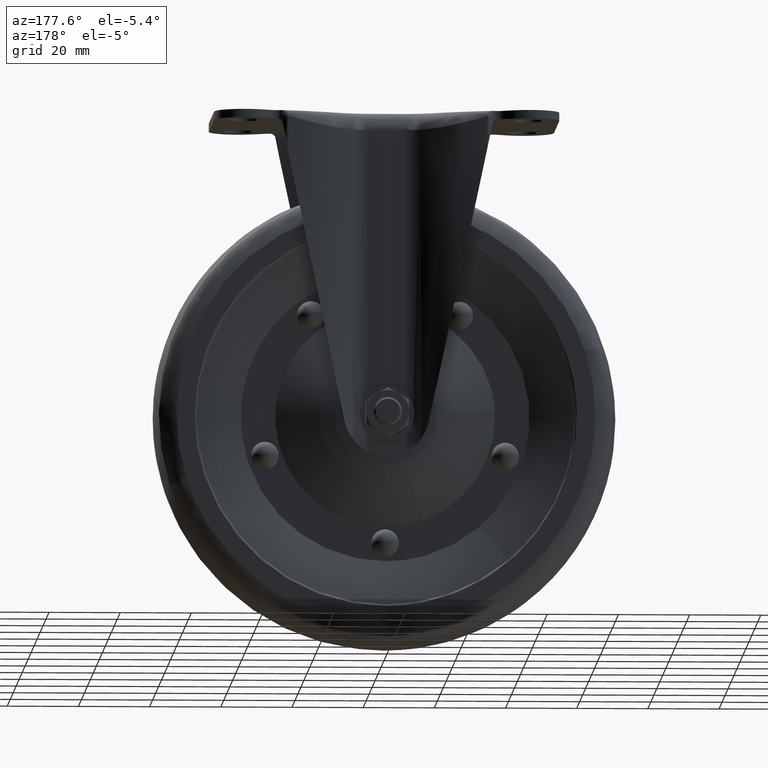
[diagram: clean part render]
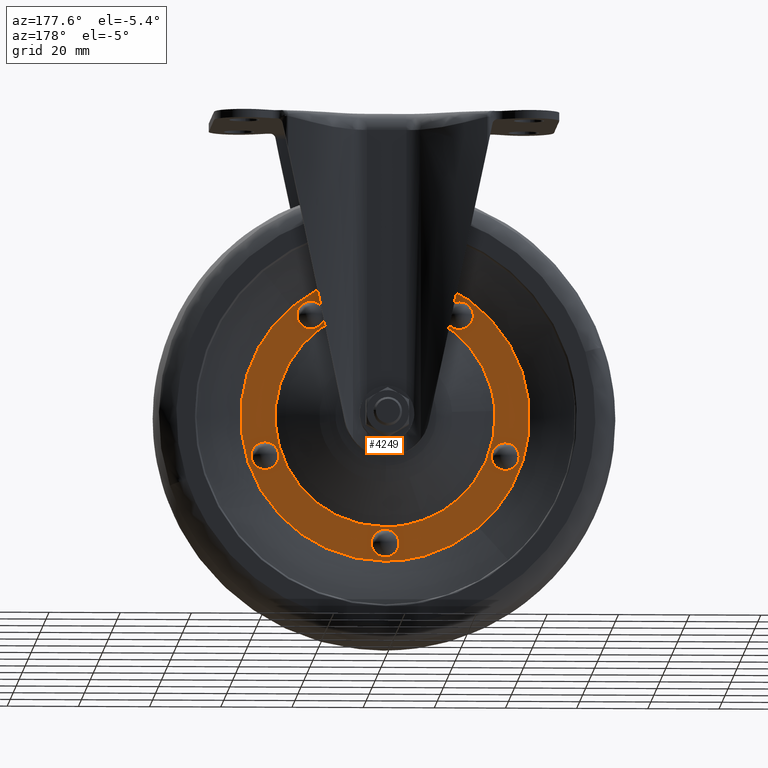
[diagram: same view with one face highlighted and labeled with its STEP entity id]
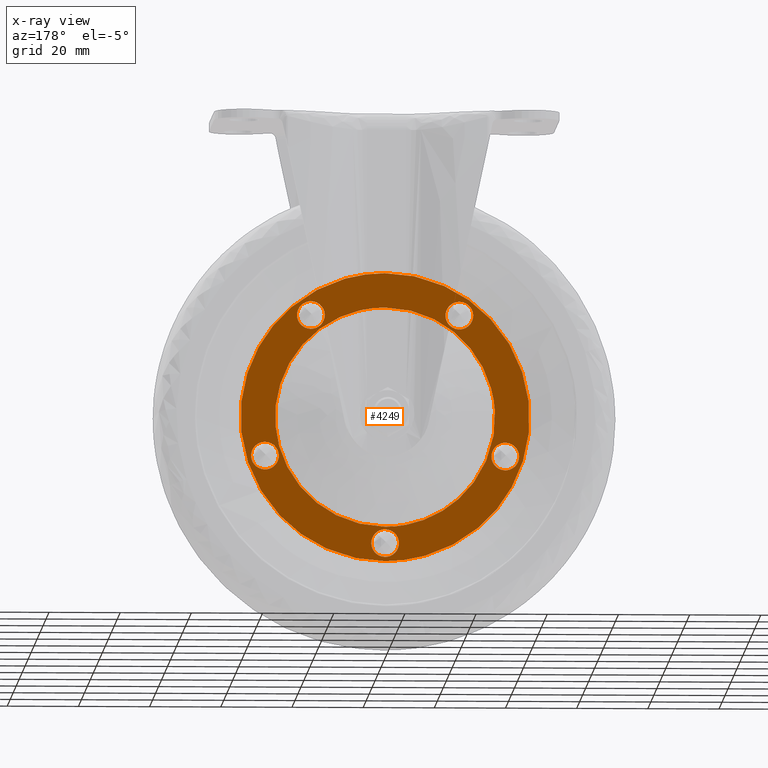
[diagram: x-ray of the same camera — body ghosted, the highlighted face saturated]
A machine part, auxiliary view. The second image highlights one B-rep face of the part: STEP entity #4249.
The next image is the same camera in x-ray: the body ghosted, the highlighted face saturated — about 0% of this face is hidden behind the body in this view.
In plain terms, the highlighted face is a freeform B-spline surface patch.
Its self-contained STEP definition (entity closure, byte-faithful):
#893=CARTESIAN_POINT('',(-30.842365271273451,7.499999999976097,-83.113600127951770));
#894=VERTEX_POINT('',#893);
#900=CARTESIAN_POINT('',(0.0,7.500000000000000,-54.100000000000009));
#901=VERTEX_POINT('',#900);
#902=CARTESIAN_POINT('',(0.0,7.500000000000000,-54.100000000000009));
#903=CARTESIAN_POINT('',(-29.067817466598008,7.500000000000001,-54.100000000000009));
#904=CARTESIAN_POINT('',(-30.842365271273451,7.499999999976097,-83.113600127951770));
#912=(BOUNDED_CURVE()B_SPLINE_CURVE(2,(#902,#903,#904),.UNSPECIFIED.,.F.,.U.)B_SPLINE_CURVE_WITH_KNOTS((3,3),(0.500000000000000,0.739332962237300),.UNSPECIFIED.)CURVE()GEOMETRIC_REPRESENTATION_ITEM()RATIONAL_B_SPLINE_CURVE((1.0,0.719603993288635,0.976072041663196))REPRESENTATION_ITEM(''));
#913=EDGE_CURVE('',#901,#894,#912,.T.);
#915=CARTESIAN_POINT('',(0.0,7.500000000000000,-115.900000000000010));
#916=VERTEX_POINT('',#915);
#917=CARTESIAN_POINT('',(0.0,7.500000000000000,-115.900000000000010));
#918=CARTESIAN_POINT('',(30.900000000000002,7.500000000000000,-115.900000000000010));
#919=CARTESIAN_POINT('',(30.899999999999999,7.500000000000000,-85.0));
#920=CARTESIAN_POINT('',(30.900000000000002,7.500000000000000,-54.100000000000009));
#921=CARTESIAN_POINT('',(0.0,7.500000000000000,-54.100000000000009));
#929=(BOUNDED_CURVE()B_SPLINE_CURVE(2,(#917,#918,#919,#920,#921),.UNSPECIFIED.,.F.,.U.)B_SPLINE_CURVE_WITH_KNOTS((3,2,3),(0.0,0.250000000000000,0.500000000000000),.UNSPECIFIED.)CURVE()GEOMETRIC_REPRESENTATION_ITEM()RATIONAL_B_SPLINE_CURVE((1.0,0.707106781186548,1.0,0.707106781186548,1.0))REPRESENTATION_ITEM(''));
#930=EDGE_CURVE('',#916,#901,#929,.T.);
#932=CARTESIAN_POINT('',(-10.864995408822020,7.499999999995296,-113.926836584166000));
#933=VERTEX_POINT('',#932);
#934=CARTESIAN_POINT('',(-10.864995408822022,7.499999999995296,-113.926836584166070));
#935=CARTESIAN_POINT('',(-5.611668229593174,7.500000000000000,-115.900000000000010));
#936=CARTESIAN_POINT('',(0.0,7.500000000000000,-115.900000000000010));
#944=(BOUNDED_CURVE()B_SPLINE_CURVE(2,(#934,#935,#936),.UNSPECIFIED.,.F.,.U.)B_SPLINE_CURVE_WITH_KNOTS((3,3),(0.940284170897620,1.0),.UNSPECIFIED.)CURVE()GEOMETRIC_REPRESENTATION_ITEM()RATIONAL_B_SPLINE_CURVE((0.893499554634188,0.930038554400360,1.0))REPRESENTATION_ITEM(''));
#945=EDGE_CURVE('',#933,#916,#944,.T.);
#985=CARTESIAN_POINT('',(-30.842365271273451,7.499999999976097,-83.113600127951770));
#986=CARTESIAN_POINT('',(-30.900000000000002,7.500000000000001,-84.055919613655149));
#987=CARTESIAN_POINT('',(-30.899999999999999,7.500000000000000,-85.0));
#988=CARTESIAN_POINT('',(-30.900000000000002,7.499999999999999,-106.401636506770900));
#989=CARTESIAN_POINT('',(-10.864995408822022,7.499999999995296,-113.926836584166010));
#997=(BOUNDED_CURVE()B_SPLINE_CURVE(2,(#985,#986,#987,#988,#989),.UNSPECIFIED.,.F.,.U.)B_SPLINE_CURVE_WITH_KNOTS((3,2,3),(0.739332962237299,0.750000000000000,0.940284170897620),.UNSPECIFIED.)CURVE()GEOMETRIC_REPRESENTATION_ITEM()RATIONAL_B_SPLINE_CURVE((0.976072041663195,0.987502787897912,1.0,0.777068226786188,0.893499554634188))REPRESENTATION_ITEM(''));
#998=EDGE_CURVE('',#894,#933,#997,.T.);
#1738=CARTESIAN_POINT('',(-26.270472039869020,7.500000000075627,-115.955165947128190));
#1739=VERTEX_POINT('',#1738);
#1753=CARTESIAN_POINT('',(0.0,7.500000000000000,-125.599999999999990));
#1754=VERTEX_POINT('',#1753);
#1755=CARTESIAN_POINT('',(-26.270472039869020,7.500000000075627,-115.955165947128190));
#1756=CARTESIAN_POINT('',(-14.905718555772401,7.500000000000001,-125.599999999999920));
#1757=CARTESIAN_POINT('',(0.0,7.500000000000000,-125.599999999999990));
#1765=(BOUNDED_CURVE()B_SPLINE_CURVE(2,(#1755,#1756,#1757),.UNSPECIFIED.,.F.,.U.)B_SPLINE_CURVE_WITH_KNOTS((3,3),(0.887331629833253,1.0),.UNSPECIFIED.)CURVE()GEOMETRIC_REPRESENTATION_ITEM()RATIONAL_B_SPLINE_CURVE((0.854978670802060,0.868000793613584,1.0))REPRESENTATION_ITEM(''));
#1766=EDGE_CURVE('',#1739,#1754,#1765,.T.);
#1768=CARTESIAN_POINT('',(26.270472039869020,7.500000000075630,-54.044834052871792));
#1769=VERTEX_POINT('',#1768);
#1770=CARTESIAN_POINT('',(0.0,7.500000000000000,-125.599999999999990));
#1771=CARTESIAN_POINT('',(40.599999999999994,7.500000000000000,-125.599999999999980));
#1772=CARTESIAN_POINT('',(40.599999999999987,7.500000000000000,-85.0));
#1773=CARTESIAN_POINT('',(40.599999999999994,7.499999999999999,-66.205759446435408));
#1774=CARTESIAN_POINT('',(26.270472039869020,7.500000000075630,-54.044834052871792));
#1782=(BOUNDED_CURVE()B_SPLINE_CURVE(2,(#1770,#1771,#1772,#1773,#1774),.UNSPECIFIED.,.F.,.U.)B_SPLINE_CURVE_WITH_KNOTS((3,2,3),(0.0,0.250000000000000,0.387331629833253),.UNSPECIFIED.)CURVE()GEOMETRIC_REPRESENTATION_ITEM()RATIONAL_B_SPLINE_CURVE((1.0,0.707106781186548,1.0,0.839105987572964,0.854978670802060))REPRESENTATION_ITEM(''));
#1783=EDGE_CURVE('',#1754,#1769,#1782,.T.);
#1902=CARTESIAN_POINT('',(0.0,7.500000000000000,-44.400000000000013));
#1903=VERTEX_POINT('',#1902);
#1904=CARTESIAN_POINT('',(26.270472039869020,7.500000000075630,-54.044834052871792));
#1905=CARTESIAN_POINT('',(14.905718555772401,7.500000000000001,-44.399999999999999));
#1906=CARTESIAN_POINT('',(0.0,7.500000000000000,-44.400000000000013));
#1914=(BOUNDED_CURVE()B_SPLINE_CURVE(2,(#1904,#1905,#1906),.UNSPECIFIED.,.F.,.U.)B_SPLINE_CURVE_WITH_KNOTS((3,3),(0.387331629833253,0.500000000000000),.UNSPECIFIED.)CURVE()GEOMETRIC_REPRESENTATION_ITEM()RATIONAL_B_SPLINE_CURVE((0.854978670802060,0.868000793613584,1.0))REPRESENTATION_ITEM(''));
#1915=EDGE_CURVE('',#1769,#1903,#1914,.T.);
#1917=CARTESIAN_POINT('',(0.0,7.500000000000000,-44.400000000000013));
#1918=CARTESIAN_POINT('',(-40.599999999999994,7.500000000000000,-44.400000000000013));
#1919=CARTESIAN_POINT('',(-40.599999999999987,7.500000000000000,-85.0));
#1920=CARTESIAN_POINT('',(-40.599999999999994,7.500000000000000,-103.794240553564720));
#1921=CARTESIAN_POINT('',(-26.270472039869023,7.500000000075627,-115.955165947128190));
#1929=(BOUNDED_CURVE()B_SPLINE_CURVE(2,(#1917,#1918,#1919,#1920,#1921),.UNSPECIFIED.,.F.,.U.)B_SPLINE_CURVE_WITH_KNOTS((3,2,3),(0.500000000000000,0.750000000000000,0.887331629833254),.UNSPECIFIED.)CURVE()GEOMETRIC_REPRESENTATION_ITEM()RATIONAL_B_SPLINE_CURVE((1.0,0.707106781186548,1.0,0.839105987572963,0.854978670802060))REPRESENTATION_ITEM(''));
#1930=EDGE_CURVE('',#1903,#1739,#1929,.T.);
#3419=CARTESIAN_POINT('',(-33.762506328477947,7.500000000000000,-99.870103300310689));
#3420=VERTEX_POINT('',#3419);
#3421=CARTESIAN_POINT('',(-33.762506328477947,7.500000000000000,-92.070103300310691));
#3422=VERTEX_POINT('',#3421);
#3423=CARTESIAN_POINT('',(-33.762506328477947,7.500000000000000,-99.870103300310689));
#3424=CARTESIAN_POINT('',(-29.862506328477949,7.500000000000000,-99.870103300310660));
#3425=CARTESIAN_POINT('',(-29.862506328477949,7.500000000000000,-95.970103300310697));
#3426=CARTESIAN_POINT('',(-29.862506328477949,7.500000000000000,-92.070103300310691));
#3427=CARTESIAN_POINT('',(-33.762506328477947,7.500000000000000,-92.070103300310691));
#3435=(BOUNDED_CURVE()B_SPLINE_CURVE(2,(#3423,#3424,#3425,#3426,#3427),.UNSPECIFIED.,.F.,.U.)B_SPLINE_CURVE_WITH_KNOTS((3,2,3),(0.500000000000000,0.750000000000000,1.0),.UNSPECIFIED.)CURVE()GEOMETRIC_REPRESENTATION_ITEM()RATIONAL_B_SPLINE_CURVE((1.0,0.707106781186548,1.0,0.707106781186548,1.0))REPRESENTATION_ITEM(''));
#3436=EDGE_CURVE('',#3420,#3422,#3435,.T.);
#3438=CARTESIAN_POINT('',(-33.762506328477947,7.500000000000000,-92.070103300310691));
#3439=CARTESIAN_POINT('',(-37.662506328477946,7.500000000000000,-92.070103300310691));
#3440=CARTESIAN_POINT('',(-37.662506328477953,7.500000000000000,-95.970103300310697));
#3441=CARTESIAN_POINT('',(-37.662506328477946,7.500000000000000,-99.870103300310660));
#3442=CARTESIAN_POINT('',(-33.762506328477947,7.500000000000000,-99.870103300310689));
#3450=(BOUNDED_CURVE()B_SPLINE_CURVE(2,(#3438,#3439,#3440,#3441,#3442),.UNSPECIFIED.,.F.,.U.)B_SPLINE_CURVE_WITH_KNOTS((3,2,3),(0.0,0.250000000000000,0.500000000000000),.UNSPECIFIED.)CURVE()GEOMETRIC_REPRESENTATION_ITEM()RATIONAL_B_SPLINE_CURVE((1.0,0.707106781186548,1.0,0.707106781186548,1.0))REPRESENTATION_ITEM(''));
#3451=EDGE_CURVE('',#3422,#3420,#3450,.T.);
#3581=CARTESIAN_POINT('',(-20.866376456382799,7.500000000000000,-60.179896699689500));
#3582=VERTEX_POINT('',#3581);
#3583=CARTESIAN_POINT('',(-20.866376456382799,7.500000000000000,-52.379896699689503));
#3584=VERTEX_POINT('',#3583);
#3585=CARTESIAN_POINT('',(-20.866376456382799,7.500000000000000,-60.179896699689500));
#3586=CARTESIAN_POINT('',(-16.966376456382807,7.500000000000000,-60.179896699689500));
#3587=CARTESIAN_POINT('',(-16.966376456382800,7.500000000000000,-56.279896699689502));
#3588=CARTESIAN_POINT('',(-16.966376456382807,7.500000000000000,-52.379896699689496));
#3589=CARTESIAN_POINT('',(-20.866376456382799,7.500000000000000,-52.379896699689503));
#3597=(BOUNDED_CURVE()B_SPLINE_CURVE(2,(#3585,#3586,#3587,#3588,#3589),.UNSPECIFIED.,.F.,.U.)B_SPLINE_CURVE_WITH_KNOTS((3,2,3),(0.500000000000000,0.750000000000000,1.0),.UNSPECIFIED.)CURVE()GEOMETRIC_REPRESENTATION_ITEM()RATIONAL_B_SPLINE_CURVE((1.0,0.707106781186548,1.0,0.707106781186548,1.0))REPRESENTATION_ITEM(''));
#3598=EDGE_CURVE('',#3582,#3584,#3597,.T.);
#3600=CARTESIAN_POINT('',(-20.866376456382799,7.500000000000000,-52.379896699689503));
#3601=CARTESIAN_POINT('',(-24.766376456382805,7.500000000000000,-52.379896699689496));
#3602=CARTESIAN_POINT('',(-24.766376456382801,7.500000000000000,-56.279896699689502));
#3603=CARTESIAN_POINT('',(-24.766376456382805,7.500000000000000,-60.179896699689500));
#3604=CARTESIAN_POINT('',(-20.866376456382799,7.500000000000000,-60.179896699689500));
#3612=(BOUNDED_CURVE()B_SPLINE_CURVE(2,(#3600,#3601,#3602,#3603,#3604),.UNSPECIFIED.,.F.,.U.)B_SPLINE_CURVE_WITH_KNOTS((3,2,3),(0.0,0.250000000000000,0.500000000000000),.UNSPECIFIED.)CURVE()GEOMETRIC_REPRESENTATION_ITEM()RATIONAL_B_SPLINE_CURVE((1.0,0.707106781186548,1.0,0.707106781186548,1.0))REPRESENTATION_ITEM(''));
#3613=EDGE_CURVE('',#3584,#3582,#3612,.T.);
#3743=CARTESIAN_POINT('',(20.866376456382799,7.500000000000000,-60.179896699689500));
#3744=VERTEX_POINT('',#3743);
#3745=CARTESIAN_POINT('',(20.866376456382799,7.500000000000000,-52.379896699689503));
#3746=VERTEX_POINT('',#3745);
#3747=CARTESIAN_POINT('',(20.866376456382799,7.500000000000000,-60.179896699689500));
#3748=CARTESIAN_POINT('',(24.766376456382805,7.500000000000000,-60.179896699689500));
#3749=CARTESIAN_POINT('',(24.766376456382801,7.500000000000000,-56.279896699689502));
#3750=CARTESIAN_POINT('',(24.766376456382805,7.500000000000000,-52.379896699689496));
#3751=CARTESIAN_POINT('',(20.866376456382799,7.500000000000000,-52.379896699689503));
#3759=(BOUNDED_CURVE()B_SPLINE_CURVE(2,(#3747,#3748,#3749,#3750,#3751),.UNSPECIFIED.,.F.,.U.)B_SPLINE_CURVE_WITH_KNOTS((3,2,3),(0.500000000000000,0.750000000000000,1.0),.UNSPECIFIED.)CURVE()GEOMETRIC_REPRESENTATION_ITEM()RATIONAL_B_SPLINE_CURVE((1.0,0.707106781186548,1.0,0.707106781186548,1.0))REPRESENTATION_ITEM(''));
#3760=EDGE_CURVE('',#3744,#3746,#3759,.T.);
#3762=CARTESIAN_POINT('',(20.866376456382799,7.500000000000000,-52.379896699689503));
#3763=CARTESIAN_POINT('',(16.966376456382807,7.500000000000000,-52.379896699689496));
#3764=CARTESIAN_POINT('',(16.966376456382800,7.500000000000000,-56.279896699689502));
#3765=CARTESIAN_POINT('',(16.966376456382807,7.500000000000000,-60.179896699689500));
#3766=CARTESIAN_POINT('',(20.866376456382799,7.500000000000000,-60.179896699689500));
#3774=(BOUNDED_CURVE()B_SPLINE_CURVE(2,(#3762,#3763,#3764,#3765,#3766),.UNSPECIFIED.,.F.,.U.)B_SPLINE_CURVE_WITH_KNOTS((3,2,3),(0.0,0.250000000000000,0.500000000000000),.UNSPECIFIED.)CURVE()GEOMETRIC_REPRESENTATION_ITEM()RATIONAL_B_SPLINE_CURVE((1.0,0.707106781186548,1.0,0.707106781186548,1.0))REPRESENTATION_ITEM(''));
#3775=EDGE_CURVE('',#3746,#3744,#3774,.T.);
#3905=CARTESIAN_POINT('',(33.762506328477947,7.500000000000000,-99.870103300310689));
#3906=VERTEX_POINT('',#3905);
#3907=CARTESIAN_POINT('',(33.762506328477947,7.500000000000000,-92.070103300310691));
#3908=VERTEX_POINT('',#3907);
#3909=CARTESIAN_POINT('',(33.762506328477947,7.500000000000000,-99.870103300310689));
#3910=CARTESIAN_POINT('',(37.662506328477946,7.500000000000000,-99.870103300310660));
#3911=CARTESIAN_POINT('',(37.662506328477953,7.500000000000000,-95.970103300310697));
#3912=CARTESIAN_POINT('',(37.662506328477946,7.500000000000000,-92.070103300310691));
#3913=CARTESIAN_POINT('',(33.762506328477947,7.500000000000000,-92.070103300310691));
#3921=(BOUNDED_CURVE()B_SPLINE_CURVE(2,(#3909,#3910,#3911,#3912,#3913),.UNSPECIFIED.,.F.,.U.)B_SPLINE_CURVE_WITH_KNOTS((3,2,3),(0.500000000000000,0.750000000000000,1.0),.UNSPECIFIED.)CURVE()GEOMETRIC_REPRESENTATION_ITEM()RATIONAL_B_SPLINE_CURVE((1.0,0.707106781186548,1.0,0.707106781186548,1.0))REPRESENTATION_ITEM(''));
#3922=EDGE_CURVE('',#3906,#3908,#3921,.T.);
#3924=CARTESIAN_POINT('',(33.762506328477947,7.500000000000000,-92.070103300310691));
#3925=CARTESIAN_POINT('',(29.862506328477949,7.500000000000000,-92.070103300310691));
#3926=CARTESIAN_POINT('',(29.862506328477949,7.500000000000000,-95.970103300310697));
#3927=CARTESIAN_POINT('',(29.862506328477949,7.500000000000000,-99.870103300310660));
#3928=CARTESIAN_POINT('',(33.762506328477947,7.500000000000000,-99.870103300310689));
#3936=(BOUNDED_CURVE()B_SPLINE_CURVE(2,(#3924,#3925,#3926,#3927,#3928),.UNSPECIFIED.,.F.,.U.)B_SPLINE_CURVE_WITH_KNOTS((3,2,3),(0.0,0.250000000000000,0.500000000000000),.UNSPECIFIED.)CURVE()GEOMETRIC_REPRESENTATION_ITEM()RATIONAL_B_SPLINE_CURVE((1.0,0.707106781186548,1.0,0.707106781186548,1.0))REPRESENTATION_ITEM(''));
#3937=EDGE_CURVE('',#3908,#3906,#3936,.T.);
#4067=CARTESIAN_POINT('',(0.0,7.500000000000000,-124.400000000000010));
#4068=VERTEX_POINT('',#4067);
#4069=CARTESIAN_POINT('',(0.0,7.500000000000000,-116.599999999999990));
#4070=VERTEX_POINT('',#4069);
#4071=CARTESIAN_POINT('',(0.0,7.500000000000000,-124.400000000000010));
#4072=CARTESIAN_POINT('',(3.899999999999999,7.500000000000000,-124.399999999999990));
#4073=CARTESIAN_POINT('',(3.900000000000000,7.500000000000000,-120.500000000000000));
#4074=CARTESIAN_POINT('',(3.899999999999999,7.500000000000000,-116.599999999999990));
#4075=CARTESIAN_POINT('',(0.0,7.500000000000000,-116.599999999999990));
#4083=(BOUNDED_CURVE()B_SPLINE_CURVE(2,(#4071,#4072,#4073,#4074,#4075),.UNSPECIFIED.,.F.,.U.)B_SPLINE_CURVE_WITH_KNOTS((3,2,3),(0.500000000000000,0.750000000000000,1.0),.UNSPECIFIED.)CURVE()GEOMETRIC_REPRESENTATION_ITEM()RATIONAL_B_SPLINE_CURVE((1.0,0.707106781186548,1.0,0.707106781186548,1.0))REPRESENTATION_ITEM(''));
#4084=EDGE_CURVE('',#4068,#4070,#4083,.T.);
#4086=CARTESIAN_POINT('',(0.0,7.500000000000000,-116.599999999999990));
#4087=CARTESIAN_POINT('',(-3.899999999999999,7.500000000000000,-116.599999999999990));
#4088=CARTESIAN_POINT('',(-3.900000000000000,7.500000000000000,-120.500000000000000));
#4089=CARTESIAN_POINT('',(-3.899999999999999,7.500000000000000,-124.399999999999990));
#4090=CARTESIAN_POINT('',(0.0,7.500000000000000,-124.400000000000010));
#4098=(BOUNDED_CURVE()B_SPLINE_CURVE(2,(#4086,#4087,#4088,#4089,#4090),.UNSPECIFIED.,.F.,.U.)B_SPLINE_CURVE_WITH_KNOTS((3,2,3),(0.0,0.250000000000000,0.500000000000000),.UNSPECIFIED.)CURVE()GEOMETRIC_REPRESENTATION_ITEM()RATIONAL_B_SPLINE_CURVE((1.0,0.707106781186548,1.0,0.707106781186548,1.0))REPRESENTATION_ITEM(''));
#4099=EDGE_CURVE('',#4070,#4068,#4098,.T.);
#4212=CARTESIAN_POINT('',(-44.639897924731109,7.500000000000000,-129.655938028020190));
#4213=CARTESIAN_POINT('',(-44.639897924731109,7.500000000000000,-40.344064149933530));
#4214=CARTESIAN_POINT('',(44.639897198815902,7.500000000000000,-129.655938028020190));
#4215=CARTESIAN_POINT('',(44.639897198815902,7.500000000000000,-40.344064149933530));
#4216=B_SPLINE_SURFACE_WITH_KNOTS('',1,1,((#4212,#4214),(#4213,#4215)),.UNSPECIFIED.,.F.,.F.,.U.,(2,2),(2,2),(0.0,89.311873878086629),(0.0,89.279795123547018),.UNSPECIFIED.);
#4217=ORIENTED_EDGE('',*,*,#1930,.F.);
#4218=ORIENTED_EDGE('',*,*,#1915,.F.);
#4219=ORIENTED_EDGE('',*,*,#1783,.F.);
#4220=ORIENTED_EDGE('',*,*,#1766,.F.);
#4221=EDGE_LOOP('',(#4217,#4218,#4219,#4220));
#4222=FACE_OUTER_BOUND('',#4221,.T.);
#4223=ORIENTED_EDGE('',*,*,#3937,.T.);
#4224=ORIENTED_EDGE('',*,*,#3922,.T.);
#4225=EDGE_LOOP('',(#4223,#4224));
#4226=FACE_BOUND('',#4225,.T.);
#4227=ORIENTED_EDGE('',*,*,#3613,.T.);
#4228=ORIENTED_EDGE('',*,*,#3598,.T.);
#4229=EDGE_LOOP('',(#4227,#4228));
#4230=FACE_BOUND('',#4229,.T.);
#4231=ORIENTED_EDGE('',*,*,#930,.T.);
#4232=ORIENTED_EDGE('',*,*,#913,.T.);
#4233=ORIENTED_EDGE('',*,*,#998,.T.);
#4234=ORIENTED_EDGE('',*,*,#945,.T.);
#4235=EDGE_LOOP('',(#4231,#4232,#4233,#4234));
#4236=FACE_BOUND('',#4235,.T.);
#4237=ORIENTED_EDGE('',*,*,#4099,.T.);
#4238=ORIENTED_EDGE('',*,*,#4084,.T.);
#4239=EDGE_LOOP('',(#4237,#4238));
#4240=FACE_BOUND('',#4239,.T.);
#4241=ORIENTED_EDGE('',*,*,#3775,.T.);
#4242=ORIENTED_EDGE('',*,*,#3760,.T.);
#4243=EDGE_LOOP('',(#4241,#4242));
#4244=FACE_BOUND('',#4243,.T.);
#4245=ORIENTED_EDGE('',*,*,#3451,.T.);
#4246=ORIENTED_EDGE('',*,*,#3436,.T.);
#4247=EDGE_LOOP('',(#4245,#4246));
#4248=FACE_BOUND('',#4247,.T.);
#4249=ADVANCED_FACE('',(#4222,#4226,#4230,#4236,#4240,#4244,#4248),#4216,.T.);